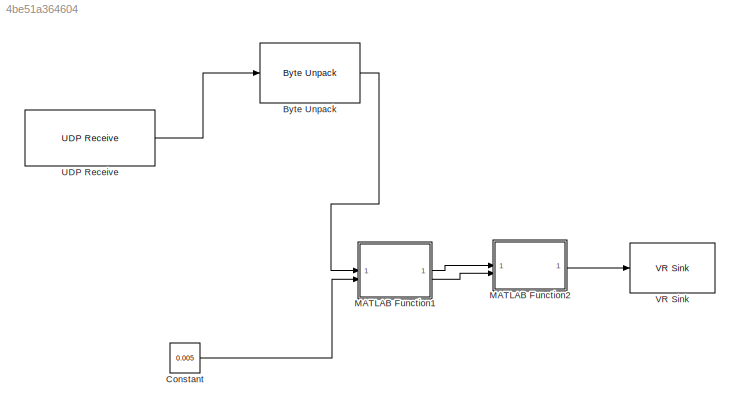
MODEL slx_4be51a364604
KIND model
CONFIG AbsTol = auto
CONFIG EnableMultiTasking = off
CONFIG FixedStep = auto
CONFIG MaxStep = auto
CONFIG MinStep = auto
CONFIG RelTol = 1e-3
CONFIG SampleTimeConstraint = Unconstrained
CONFIG SolverName = FixedStepAuto
CONFIG StartTime = 0.0
CONFIG StopTime = 100.0
BLOCK [Reference] Byte Unpack  REF=svdutilitieslib/Byte Unpack
  SourceBlock = svdutilitieslib/Byte Unpack
  SourceType = Byte Unpack
BLOCK [Constant] Constant
  OutDataTypeStr = single
  Value = 0.005
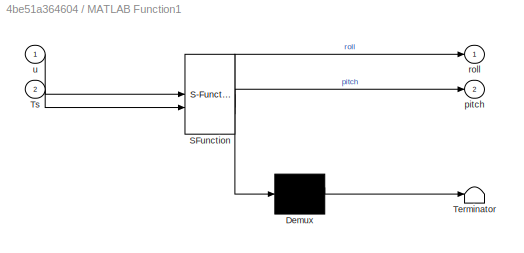
BLOCK [SubSystem] MATLAB Function1
  ErrorFcn = Stateflow.Translate.translate
  PermitHierarchicalResolution = ExplicitOnly
  SFBlockType = MATLAB Function
  TreatAsAtomicUnit = on
BLOCK [Demux] MATLAB Function1/ Demux 
  Outputs = 1
BLOCK [S-Function] MATLAB Function1/ SFunction 
  EnableBusSupport = on
  FunctionName = sf_sfun
  PortCounts = [2 3]
  SFcnIsStateOwnerBlock = off
  SFunctionDeploymentMode = off
  Tag = Stateflow S-Function 1
BLOCK [Terminator] MATLAB Function1/ Terminator 
BLOCK [Inport] MATLAB Function1/Ts
  Port = 2
BLOCK [Outport] MATLAB Function1/pitch
  Port = 2
BLOCK [Outport] MATLAB Function1/roll
BLOCK [Inport] MATLAB Function1/u
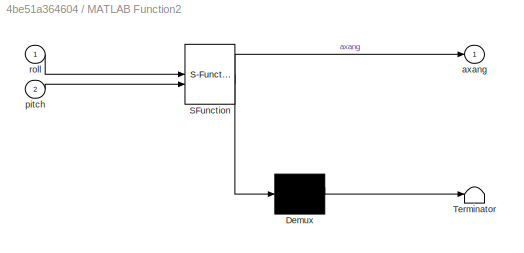
BLOCK [SubSystem] MATLAB Function2
  ErrorFcn = Stateflow.Translate.translate
  PermitHierarchicalResolution = ExplicitOnly
  SFBlockType = MATLAB Function
  TreatAsAtomicUnit = on
BLOCK [Demux] MATLAB Function2/ Demux 
  Outputs = 1
BLOCK [S-Function] MATLAB Function2/ SFunction 
  EnableBusSupport = on
  FunctionName = sf_sfun
  PortCounts = [2 2]
  SFcnIsStateOwnerBlock = off
  SFunctionDeploymentMode = off
  Tag = Stateflow S-Function 3
BLOCK [Terminator] MATLAB Function2/ Terminator 
BLOCK [Outport] MATLAB Function2/axang
BLOCK [Inport] MATLAB Function2/pitch
  Port = 2
BLOCK [Inport] MATLAB Function2/roll
BLOCK [Reference] UDP Receive  REF=instrumentlib/UDP Receive
  SourceBlock = instrumentlib/UDP Receive
  SourceType = instrument.system.UDPReceive
BLOCK [Reference] VR Sink  REF=vrlib/VR Sink
  InstantiateOnLoad = on
  SourceBlock = vrlib/VR Sink
  SourceType = Virtual Reality Sink
LINE Byte Unpack:1 -> MATLAB Function1:1
LINE Constant:1 -> MATLAB Function1:2
LINE MATLAB Function1:1 -> MATLAB Function2:1
LINE MATLAB Function1:2 -> MATLAB Function2:2
LINE MATLAB Function2:1 -> VR Sink:1
LINE UDP Receive:1 -> Byte Unpack:1
CHART MATLAB Function1 states=1 transitions=1
  STATE_LABEL 'eML_blk_kernel()'
  STATE_LABEL 'SCRIPT:\nfunction [roll, pitch] = compFilter(u, Ts)\n% u = [ax ay az gx gy gz] (all singles from Byte Unpack)\n% Ts = scalar double\n\nax = double(u(1));\nay = double(u(2));\naz = double(u(3));\ngx = double(u(4));\ngy = double(u(5));\n% gz = double(u(6)); % unused\n\nTs = double(Ts);\n\npersistent roll_est pitch_est\nif isempty(roll_est)\n    roll_est = 0.0;\n    pitch_est = 0.0;\nend\n\n% Accelerometer angles\nroll_a...<+351ch>'
CHART MATLAB Function2 states=1 transitions=1
  STATE_LABEL 'eML_blk_kernel()'
  STATE_LABEL 'SCRIPT:\nfunction axang = rpy2axang(roll, pitch)\n% Converts roll & pitch (radians) to axis-angle for VR Sink\n% Input:  roll (rad), pitch (rad) from MPU6050 frame\n% Output: [axisX axisY axisZ angle] for VR Sink\n\n    yaw = 0;  % not measured yet\n\n    % ---- MPU6050 → VR Sink axis mapping ----\n    mapped_roll  = pitch;   % forward tilt = roll in VR\n    mapped_pitch = -roll;   % right tilt = negative p...<+633ch>'
CHART  states=0 transitions=0
CHART  states=0 transitions=0
